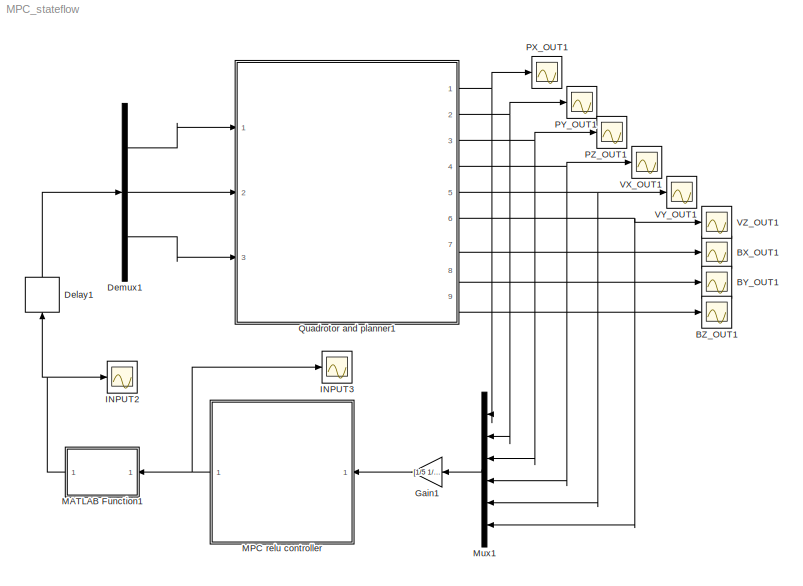
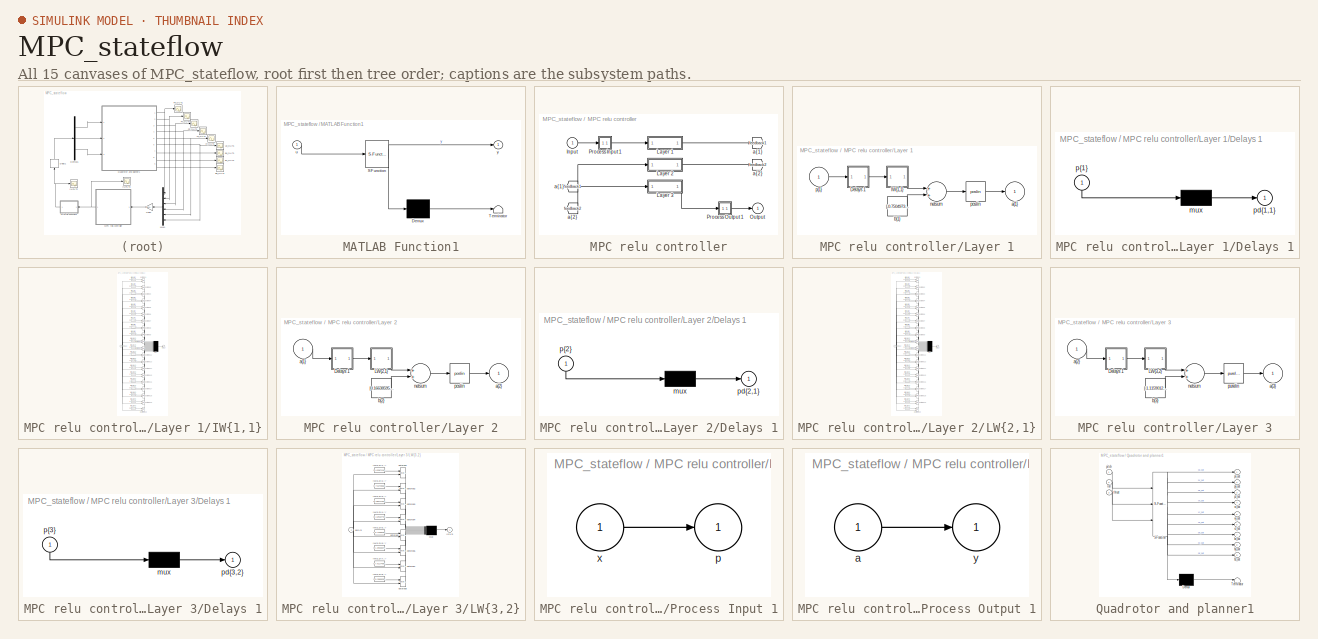
[diagram: thumbnail index - all 15 canvases of the model, root first then tree order]
MODEL MPC_stateflow
KIND model
BLOCK [Scope] BX_OUT1
  Floating = off
  NumInputPorts = 1
  Ports = [1]
  SID = 642
  ScopeSpecificationString = Simulink.scopes.TimeScopeBlockCfg('CurrentConfiguration', extmgr.ConfigurationSet(extmgr.Configuration('Core','General UI',true),extmgr.Configuration('Core','Source UI',true),extmgr.Configuration('Sources','WiredSimulink',true,'DataLoggingVariableName','ScopeData1'),extmgr.Configuration('Visuals','Time Domain',true,'SerializedDisplays',{struct('MinYLimReal','-0.1125','MaxYLimReal','3.0125','YLabel...<+1435ch>
BLOCK [Scope] BY_OUT1
  Floating = off
  NumInputPorts = 1
  Ports = [1]
  SID = 643
  ScopeSpecificationString = Simulink.scopes.TimeScopeBlockCfg('CurrentConfiguration', extmgr.ConfigurationSet(extmgr.Configuration('Core','General UI',true),extmgr.Configuration('Core','Source UI',true),extmgr.Configuration('Sources','WiredSimulink',true,'DataLoggingVariableName','ScopeData2'),extmgr.Configuration('Visuals','Time Domain',true,'SerializedDisplays',{struct('MinYLimReal','-2.72437','MaxYLimReal','0.40063','YLab...<+1440ch>
BLOCK [Scope] BZ_OUT1
  Floating = off
  NumInputPorts = 1
  Ports = [1]
  SID = 644
  ScopeSpecificationString = Simulink.scopes.TimeScopeBlockCfg('CurrentConfiguration', extmgr.ConfigurationSet(extmgr.Configuration('Core','General UI',true),extmgr.Configuration('Core','Source UI',true),extmgr.Configuration('Sources','WiredSimulink',true,'DataLoggingVariableName','ScopeData3'),extmgr.Configuration('Visuals','Time Domain',true,'SerializedDisplays',{struct('MinYLimReal','-0.51245','MaxYLimReal','2.61255','YLab...<+1441ch>
BLOCK [Delay] Delay1
  DelayLength = 1
  InitialCondition = 0
  InputPortMap = u0
  Ports = [1, 1]
  SID = 645
BLOCK [Demux] Demux1
  DisplayOption = bar
  Outputs = 3
  Ports = [1, 3]
  SID = 646
BLOCK [Gain] Gain1
  Gain = [1/5 1/5 1/5 1/10 1/10 1/10]
  OutDataTypeStr = Inherit: Inherit via internal rule
  ParamDataTypeStr = Inherit: Inherit via internal rule
  SID = 647
  SaturateOnIntegerOverflow = off
BLOCK [Scope] INPUT2
  Floating = off
  NumInputPorts = 1
  Ports = [1]
  SID = 648
  ScopeSpecificationString = Simulink.scopes.TimeScopeBlockCfg('CurrentConfiguration', extmgr.ConfigurationSet(extmgr.Configuration('Core','General UI',true),extmgr.Configuration('Core','Source UI',true),extmgr.Configuration('Sources','WiredSimulink',true,'DataLoggingVariableName','ScopeData4'),extmgr.Configuration('Visuals','Time Domain',true,'SerializedDisplays',{struct('MinYLimReal','-1.58875','MaxYLimReal','13.29875','YLa...<+1565ch>
BLOCK [Scope] INPUT3
  Floating = off
  NumInputPorts = 1
  Ports = [1]
  SID = 649
  ScopeSpecificationString = Simulink.scopes.TimeScopeBlockCfg('CurrentConfiguration', extmgr.ConfigurationSet(extmgr.Configuration('Core','General UI',true),extmgr.Configuration('Core','Source UI',true),extmgr.Configuration('Sources','WiredSimulink',true,'DataLoggingVariableName','ScopeData5'),extmgr.Configuration('Visuals','Time Domain',true,'SerializedDisplays',{struct('MinYLimReal','-915.34695','MaxYLimReal','908.33649','...<+1834ch>
BLOCK [SubSystem] MATLAB Function1
  ErrorFcn = Stateflow.Translate.translate
  PermitHierarchicalResolution = ExplicitOnly
  Ports = [1, 1]
  RequestExecContextInheritance = off
  SFBlockType = MATLAB Function
  SID = 650
  TreatAsAtomicUnit = on
BLOCK [Demux] MATLAB Function1/ Demux 
  Outputs = 1
  Ports = [1, 1]
  SID = 650::20
BLOCK [S-Function] MATLAB Function1/ SFunction 
  EnableBusSupport = on
  FunctionName = sf_sfun
  PortCounts = [1 2]
  Ports = [1, 2]
  SFcnIsStateOwnerBlock = off
  SFunctionDeploymentMode = off
  SID = 650::19
  Tag = Stateflow S-Function MPC_stateflow 3
BLOCK [Terminator] MATLAB Function1/ Terminator 
  SID = 650::21
BLOCK [Inport] MATLAB Function1/u
  IconDisplay = Port number
  SID = 650::1
BLOCK [Outport] MATLAB Function1/y
  IconDisplay = Port number
  SID = 650::5
BLOCK [SubSystem] MPC relu controller
  Ports = [1, 1]
  RequestExecContextInheritance = off
  SID = 964
BLOCK [From] MPC relu controller/ a{1} 
  GotoTag = feedback1
  SID = 966
BLOCK [From] MPC relu controller/ a{2} 
  GotoTag = feedback2
  SID = 967
BLOCK [Inport] MPC relu controller/Input
  IconDisplay = Port number
  PortDimensions = 6
  SID = 965
BLOCK [SubSystem] MPC relu controller/Layer 1
  Ports = [1, 1]
  RequestExecContextInheritance = off
  SID = 968
BLOCK [SubSystem] MPC relu controller/Layer 1/Delays 1
  Ports = [1, 1]
  RequestExecContextInheritance = off
  SID = 970
BLOCK [Mux] MPC relu controller/Layer 1/Delays 1/mux
  Inputs = 1
  Ports = [1, 1]
  SID = 972
BLOCK [Outport] MPC relu controller/Layer 1/Delays 1/pd{1,1}
  IconDisplay = Port number
  SID = 973
BLOCK [Inport] MPC relu controller/Layer 1/Delays 1/p{1}
  IconDisplay = Port number
  PortDimensions = 6
  SID = 971
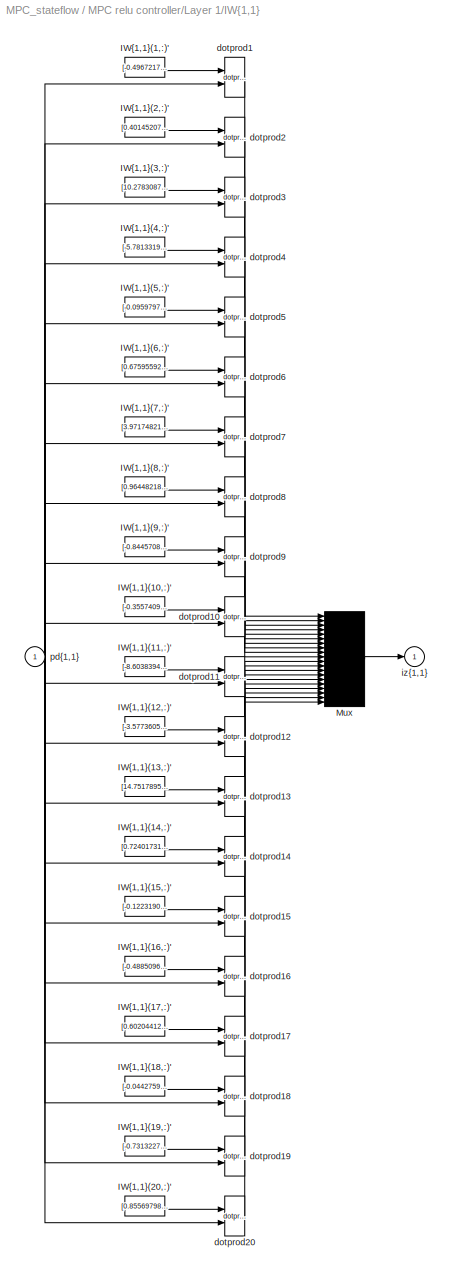
BLOCK [SubSystem] MPC relu controller/Layer 1/IW{1,1}
  Ports = [1, 1]
  RequestExecContextInheritance = off
  SID = 974
BLOCK [Constant] MPC relu controller/Layer 1/IW{1,1}/IW{1,1}(1,:)'
  SID = 976
  Value = [-0.49672171528829434095086980960331857204437255859375;0.7919399340132968756478248906205408275127410888671875;-0.1870342620458274041084223426878452301025390625;0.3947377512262788545882585822255350649356842041015625;-0.3139437803391869064029151559225283563137054443359375;-0.7011064021222750408668389354716055095195770263671875]
BLOCK [Constant] MPC relu controller/Layer 1/IW{1,1}/IW{1,1}(10,:)'
  SID = 977
  Value = [-0.3557409727704607949050341630936600267887115478515625;-0.4115686235114905944243446356267668306827545166015625;-0.3593613483559374710551992393448017537593841552734375;0.1706969178765020966892507203738205134868621826171875;0.3847202432468177502045136861852370202541351318359375;-0.4762391917929595930303321438259445130825042724609375]
BLOCK [Constant] MPC relu controller/Layer 1/IW{1,1}/IW{1,1}(11,:)'
  SID = 978
  Value = [-8.60383941965420717679080553352832794189453125;-15.5228977256636806458800492691807448863983154296875;8.1414878272752755350438746972940862178802490234375;-7.3435267043911611750672818743623793125152587890625;-8.6554831042108570926529864664189517498016357421875;4.52085750036575273469452440622262656688690185546875]
BLOCK [Constant] MPC relu controller/Layer 1/IW{1,1}/IW{1,1}(12,:)'
  SID = 979
  Value = [-3.5773605196200346512114265351556241512298583984375;3.280204690741935547038110598805360496044158935546875;-1.4131545374955087890356253410573117434978485107421875;-2.652332317553045104574493961990810930728912353515625;4.11605436748665365342958466499112546443939208984375;-2.46629943742274537754610719275660812854766845703125]
BLOCK [Constant] MPC relu controller/Layer 1/IW{1,1}/IW{1,1}(13,:)'
  SID = 980
  Value = [14.75178956292919707493638270534574985504150390625;-8.1467745080255582479367149062454700469970703125;-11.700032558051763231787845143117010593414306640625;8.7378958296805766536863302462734282016754150390625;-3.4881583919940748472754421527497470378875732421875;-8.076032161680029020089932600967586040496826171875]
BLOCK [Constant] MPC relu controller/Layer 1/IW{1,1}/IW{1,1}(14,:)'
  SID = 981
  Value = [0.7240173144088901668879998396732844412326812744140625;0.42751693404526613928595679681166075170040130615234375;0.715620074538168449151953609543852508068084716796875;-0.45353663372330321745806713806814514100551605224609375;-0.274815253673093451425302191637456417083740234375;0.2000094339945863441965201445782440714538097381591796875]
BLOCK [Constant] MPC relu controller/Layer 1/IW{1,1}/IW{1,1}(15,:)'
  SID = 982
  Value = [-0.1223190113787241684040196787464083172380924224853515625;4.484759038302289724242655211128294467926025390625;-3.32264992522697166776879384997300803661346435546875;-1.7593434647760641809099979582242667675018310546875;1.517532838671552308795753560843877494335174560546875;-0.9137275420860309083082029246725142002105712890625]
BLOCK [Constant] MPC relu controller/Layer 1/IW{1,1}/IW{1,1}(16,:)'
  SID = 983
  Value = [-0.488509612388137615113237188779748976230621337890625;0.589156702369504348126838522148318588733673095703125;-0.4959338397383212804214736024732701480388641357421875;0.3649074195336308168435834886622615158557891845703125;0.2632932537318792842739867410273291170597076416015625;0.0192265884351172644528560340404510498046875]
BLOCK [Constant] MPC relu controller/Layer 1/IW{1,1}/IW{1,1}(17,:)'
  SID = 984
  Value = [0.6020441251050534514632772697950713336467742919921875;0.0031421927660008931726398628825336345471441745758056640625;0.5886743113083074963043372918036766350269317626953125;-0.55305562852305778509531819508993066847324371337890625;0.412352603937068684647471172866062261164188385009765625;-0.39253657679086229048692757714889012277126312255859375]
BLOCK [Constant] MPC relu controller/Layer 1/IW{1,1}/IW{1,1}(18,:)'
  SID = 985
  Value = [-0.0442759911355576907254771867883391678333282470703125;0.58364207900830766817534822621382772922515869140625;-0.134122982531673873296540477895177900791168212890625;-0.97246497488456640212461934424936771392822265625;0.2271773890056711930895971818245016038417816162109375;0.7193019071384021412285392216290347278118133544921875]
BLOCK [Constant] MPC relu controller/Layer 1/IW{1,1}/IW{1,1}(19,:)'
  SID = 986
  Value = [-0.7313227826886077309609390795230865478515625;0.39152842854367886360478223650716245174407958984375;-0.284977665339117169907012794283218681812286376953125;-0.1665520752586078234713795609422959387302398681640625;0.296625512326249118899568202323280274868011474609375;0.34319676181277980475670119631104171276092529296875]
BLOCK [Constant] MPC relu controller/Layer 1/IW{1,1}/IW{1,1}(2,:)'
  SID = 987
  Value = [0.4014520729650759012230309963342733681201934814453125;-0.0169096999661293434513709144084714353084564208984375;0.2955412663749623636277874538791365921497344970703125;-0.4626997521875468866170422188588418066501617431640625;0.559488590965199872329094432643614709377288818359375;0.0283500870517656711200515928794629871845245361328125]
BLOCK [Constant] MPC relu controller/Layer 1/IW{1,1}/IW{1,1}(20,:)'
  SID = 988
  Value = [0.8556979856500215309011991848819889128208160400390625;0.55569695371835070574206838500685989856719970703125;-0.3394461269498381117415419794269837439060211181640625;0.8769637837134680591333335542003624141216278076171875;-0.66011857156548447989052874618209898471832275390625;0.2669480252448419577149252290837466716766357421875]
BLOCK [Constant] MPC relu controller/Layer 1/IW{1,1}/IW{1,1}(3,:)'
  SID = 989
  Value = [10.278308773275764309573787613771855831146240234375;-1.458070988124216871284488661331124603748321533203125;9.2976133767070638924678860348649322986602783203125;5.96961486516493256004878276144154369831085205078125;-0.78994311381280357675649383963900618255138397216796875;6.1202362807710386505277710966765880584716796875]
BLOCK [Constant] MPC relu controller/Layer 1/IW{1,1}/IW{1,1}(4,:)'
  SID = 990
  Value = [-5.78133195487929274491989417583681643009185791015625;8.1155963311058929576802256633527576923370361328125;-9.0452319045538605024603384663350880146026611328125;-5.7248894483031964597330443211831152439117431640625;5.45969840530721750582188178668729960918426513671875;-6.17549641965308371283072119695134460926055908203125]
BLOCK [Constant] MPC relu controller/Layer 1/IW{1,1}/IW{1,1}(5,:)'
  SID = 991
  Value = [-0.09597971285552098219540084755863063037395477294921875;0.307012674627499759782978117073071189224720001220703125;-0.471345532376645171002138567928341217339038848876953125;1.806571114485711060382300274795852601528167724609375;-2.656519324157930128649240941740572452545166015625;2.0038525987593853727730675018392503261566162109375]
BLOCK [Constant] MPC relu controller/Layer 1/IW{1,1}/IW{1,1}(6,:)'
  SID = 992
  Value = [0.6759559240954586822880401086877100169658660888671875;-0.204018721184155094050538536976091563701629638671875;-0.18272554997347523197959162644110620021820068359375;-0.02415701638959522057348294765688478946685791015625;0.43354162829275200152778779738582670688629150390625;-0.1421353319401941206479023094289004802703857421875]
BLOCK [Constant] MPC relu controller/Layer 1/IW{1,1}/IW{1,1}(7,:)'
  SID = 993
  Value = [3.971748215038558793565925952862016856670379638671875;8.5981762946841673311837439541704952716827392578125;10.513905616820007793421609676443040370941162109375;2.415782649071406940066708557424135506153106689453125;6.7366019229035334348054675501771271228790283203125;6.43590368048370198295060617965646088123321533203125]
BLOCK [Constant] MPC relu controller/Layer 1/IW{1,1}/IW{1,1}(8,:)'
  SID = 994
  Value = [0.9644821869427320226719757556566037237644195556640625;-0.62740953330892512695982077275402843952178955078125;-0.175789058369896722400227417892892844974994659423828125;0.85172974461793515832397361009498126804828643798828125;0.29110676170273552809675265962141565978527069091796875;-0.60794562571602506206858151927008293569087982177734375]
BLOCK [Constant] MPC relu controller/Layer 1/IW{1,1}/IW{1,1}(9,:)'
  SID = 995
  Value = [-0.84457085933522701992615111521445214748382568359375;0.9299778482218277186888144569820724427700042724609375;0.950444684874624190484837527037598192691802978515625;-0.631231115264466513536945058149285614490509033203125;-0.4932079310274006811454228227376006543636322021484375;-0.3151187177303789166415981526370160281658172607421875]
BLOCK [Mux] MPC relu controller/Layer 1/IW{1,1}/Mux
  Inputs = 20
  Ports = [20, 1]
  SID = 996
BLOCK [Reference] MPC relu controller/Layer 1/IW{1,1}/dotprod1  REF=neural/Weight Functions/dotprod
  Ports = [2, 1]
  SID = 997
  SourceBlock = neural/Weight Functions/dotprod
  SourceProductBaseCode = NN
  SourceProductName = Neural Network Toolbox
  SourceType = DOTPROD
BLOCK [Reference] MPC relu controller/Layer 1/IW{1,1}/dotprod10  REF=neural/Weight Functions/dotprod
  Ports = [2, 1]
  SID = 998
  SourceBlock = neural/Weight Functions/dotprod
  SourceProductBaseCode = NN
  SourceProductName = Neural Network Toolbox
  SourceType = DOTPROD
BLOCK [Reference] MPC relu controller/Layer 1/IW{1,1}/dotprod11  REF=neural/Weight Functions/dotprod
  Ports = [2, 1]
  SID = 999
  SourceBlock = neural/Weight Functions/dotprod
  SourceProductBaseCode = NN
  SourceProductName = Neural Network Toolbox
  SourceType = DOTPROD
BLOCK [Reference] MPC relu controller/Layer 1/IW{1,1}/dotprod12  REF=neural/Weight Functions/dotprod
  Ports = [2, 1]
  SID = 1000
  SourceBlock = neural/Weight Functions/dotprod
  SourceProductBaseCode = NN
  SourceProductName = Neural Network Toolbox
  SourceType = DOTPROD
BLOCK [Reference] MPC relu controller/Layer 1/IW{1,1}/dotprod13  REF=neural/Weight Functions/dotprod
  Ports = [2, 1]
  SID = 1001
  SourceBlock = neural/Weight Functions/dotprod
  SourceProductBaseCode = NN
  SourceProductName = Neural Network Toolbox
  SourceType = DOTPROD
BLOCK [Reference] MPC relu controller/Layer 1/IW{1,1}/dotprod14  REF=neural/Weight Functions/dotprod
  Ports = [2, 1]
  SID = 1002
  SourceBlock = neural/Weight Functions/dotprod
  SourceProductBaseCode = NN
  SourceProductName = Neural Network Toolbox
  SourceType = DOTPROD
BLOCK [Reference] MPC relu controller/Layer 1/IW{1,1}/dotprod15  REF=neural/Weight Functions/dotprod
  Ports = [2, 1]
  SID = 1003
  SourceBlock = neural/Weight Functions/dotprod
  SourceProductBaseCode = NN
  SourceProductName = Neural Network Toolbox
  SourceType = DOTPROD
BLOCK [Reference] MPC relu controller/Layer 1/IW{1,1}/dotprod16  REF=neural/Weight Functions/dotprod
  Ports = [2, 1]
  SID = 1004
  SourceBlock = neural/Weight Functions/dotprod
  SourceProductBaseCode = NN
  SourceProductName = Neural Network Toolbox
  SourceType = DOTPROD
BLOCK [Reference] MPC relu controller/Layer 1/IW{1,1}/dotprod17  REF=neural/Weight Functions/dotprod
  Ports = [2, 1]
  SID = 1005
  SourceBlock = neural/Weight Functions/dotprod
  SourceProductBaseCode = NN
  SourceProductName = Neural Network Toolbox
  SourceType = DOTPROD
BLOCK [Reference] MPC relu controller/Layer 1/IW{1,1}/dotprod18  REF=neural/Weight Functions/dotprod
  Ports = [2, 1]
  SID = 1006
  SourceBlock = neural/Weight Functions/dotprod
  SourceProductBaseCode = NN
  SourceProductName = Neural Network Toolbox
  SourceType = DOTPROD
BLOCK [Reference] MPC relu controller/Layer 1/IW{1,1}/dotprod19  REF=neural/Weight Functions/dotprod
  Ports = [2, 1]
  SID = 1007
  SourceBlock = neural/Weight Functions/dotprod
  SourceProductBaseCode = NN
  SourceProductName = Neural Network Toolbox
  SourceType = DOTPROD
BLOCK [Reference] MPC relu controller/Layer 1/IW{1,1}/dotprod2  REF=neural/Weight Functions/dotprod
  Ports = [2, 1]
  SID = 1008
  SourceBlock = neural/Weight Functions/dotprod
  SourceProductBaseCode = NN
  SourceProductName = Neural Network Toolbox
  SourceType = DOTPROD
BLOCK [Reference] MPC relu controller/Layer 1/IW{1,1}/dotprod20  REF=neural/Weight Functions/dotprod
  Ports = [2, 1]
  SID = 1009
  SourceBlock = neural/Weight Functions/dotprod
  SourceProductBaseCode = NN
  SourceProductName = Neural Network Toolbox
  SourceType = DOTPROD
BLOCK [Reference] MPC relu controller/Layer 1/IW{1,1}/dotprod3  REF=neural/Weight Functions/dotprod
  Ports = [2, 1]
  SID = 1010
  SourceBlock = neural/Weight Functions/dotprod
  SourceProductBaseCode = NN
  SourceProductName = Neural Network Toolbox
  SourceType = DOTPROD
BLOCK [Reference] MPC relu controller/Layer 1/IW{1,1}/dotprod4  REF=neural/Weight Functions/dotprod
  Ports = [2, 1]
  SID = 1011
  SourceBlock = neural/Weight Functions/dotprod
  SourceProductBaseCode = NN
  SourceProductName = Neural Network Toolbox
  SourceType = DOTPROD
BLOCK [Reference] MPC relu controller/Layer 1/IW{1,1}/dotprod5  REF=neural/Weight Functions/dotprod
  Ports = [2, 1]
  SID = 1012
  SourceBlock = neural/Weight Functions/dotprod
  SourceProductBaseCode = NN
  SourceProductName = Neural Network Toolbox
  SourceType = DOTPROD
BLOCK [Reference] MPC relu controller/Layer 1/IW{1,1}/dotprod6  REF=neural/Weight Functions/dotprod
  Ports = [2, 1]
  SID = 1013
  SourceBlock = neural/Weight Functions/dotprod
  SourceProductBaseCode = NN
  SourceProductName = Neural Network Toolbox
  SourceType = DOTPROD
BLOCK [Reference] MPC relu controller/Layer 1/IW{1,1}/dotprod7  REF=neural/Weight Functions/dotprod
  Ports = [2, 1]
  SID = 1014
  SourceBlock = neural/Weight Functions/dotprod
  SourceProductBaseCode = NN
  SourceProductName = Neural Network Toolbox
  SourceType = DOTPROD
BLOCK [Reference] MPC relu controller/Layer 1/IW{1,1}/dotprod8  REF=neural/Weight Functions/dotprod
  Ports = [2, 1]
  SID = 1015
  SourceBlock = neural/Weight Functions/dotprod
  SourceProductBaseCode = NN
  SourceProductName = Neural Network Toolbox
  SourceType = DOTPROD
BLOCK [Reference] MPC relu controller/Layer 1/IW{1,1}/dotprod9  REF=neural/Weight Functions/dotprod
  Ports = [2, 1]
  SID = 1016
  SourceBlock = neural/Weight Functions/dotprod
  SourceProductBaseCode = NN
  SourceProductName = Neural Network Toolbox
  SourceType = DOTPROD
BLOCK [Outport] MPC relu controller/Layer 1/IW{1,1}/iz{1,1}
  IconDisplay = Port number
  SID = 1017
BLOCK [Inport] MPC relu controller/Layer 1/IW{1,1}/pd{1,1}
  IconDisplay = Port number
  PortDimensions = 6
  SID = 975
BLOCK [Outport] MPC relu controller/Layer 1/a{1}
  IconDisplay = Port number
  InitialOutput = [0;0;0;0;0;0;0;0;0;0;0;0;0;0;0;0;0;0;0;0]
  SID = 1021
BLOCK [Constant] MPC relu controller/Layer 1/b{1}
  SID = 1018
  Value = [-0.7504973998616415453710715155466459691524505615234375;-0.0588242410022286055237827895325608551502227783203125;0.9725351615555855033790066954679787158966064453125;1.7800647370580280348661972311674617230892181396484375;-0.216318361761681343669039279120624996721744537353515625;-0.696550257936052741314369995961897075176239013671875;-0.04567820375606888860797738516339450143277645111083984375;-0.0136...<+709ch>
BLOCK [Sum] MPC relu controller/Layer 1/netsum
  Inputs = 2
  Ports = [2, 1]
  SID = 1019
BLOCK [Reference] MPC relu controller/Layer 1/poslin  REF=neural/Transfer Functions/poslin
  Ports = [1, 1]
  SID = 1020
  SourceBlock = neural/Transfer Functions/poslin
  SourceProductBaseCode = NN
  SourceProductName = Neural Network Toolbox
  SourceType = POSLIN
BLOCK [Inport] MPC relu controller/Layer 1/p{1}
  IconDisplay = Port number
  PortDimensions = 6
  SID = 969
BLOCK [SubSystem] MPC relu controller/Layer 2
  Ports = [1, 1]
  RequestExecContextInheritance = off
  SID = 1022
BLOCK [SubSystem] MPC relu controller/Layer 2/Delays 1
  Ports = [1, 1]
  RequestExecContextInheritance = off
  SID = 1024
BLOCK [Mux] MPC relu controller/Layer 2/Delays 1/mux
  Inputs = 1
  Ports = [1, 1]
  SID = 1026
BLOCK [Outport] MPC relu controller/Layer 2/Delays 1/pd{2,1}
  IconDisplay = Port number
  SID = 1027
BLOCK [Inport] MPC relu controller/Layer 2/Delays 1/p{2}
  IconDisplay = Port number
  PortDimensions = 20
  SID = 1025
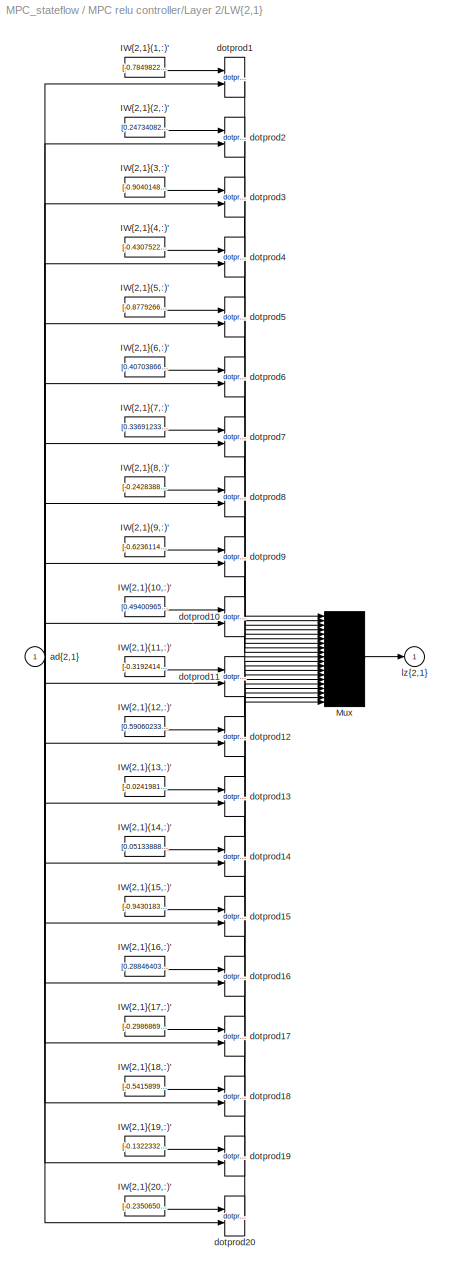
BLOCK [SubSystem] MPC relu controller/Layer 2/LW{2,1}
  Ports = [1, 1]
  RequestExecContextInheritance = off
  SID = 1028
BLOCK [Constant] MPC relu controller/Layer 2/LW{2,1}/IW{2,1}(1,:)'
  SID = 1030
  Value = [-0.78498224762966462009217138984240591526031494140625;-0.060421919827279513270923416712321341037750244140625;5.9631375225940370654598154942505061626434326171875;-5.75995181875730022369452854036353528499603271484375;1.479993944168970898545012460090219974517822265625;0.7540687785407038656870781778707168996334075927734375;-2.46005519196679234283919868175871670246124267578125;0.0720169894791273801359...<+671ch>
BLOCK [Constant] MPC relu controller/Layer 2/LW{2,1}/IW{2,1}(10,:)'
  SID = 1031
  Value = [0.49400965805989027757050280342809855937957763671875;-0.912931472484469264117024067672900855541229248046875;-0.00240582898682573098625425700447522103786468505859375;-1.12049653485544542519392052781768143177032470703125;0.627603278532963049229920216021127998828887939453125;0.7403834924107552950545141356997191905975341796875;0.665732252268849133969297326984815299510955810546875;-0.13528881047131191...<+689ch>
BLOCK [Constant] MPC relu controller/Layer 2/LW{2,1}/IW{2,1}(11,:)'
  SID = 1032
  Value = [-0.319241418469065507679260917939245700836181640625;0.9015068561220045406656709019443951547145843505859375;0.27047631106911873555276315528317354619503021240234375;2.827976228021503946052916944609023630619049072265625;0.83555145878531444925130244882893748581409454345703125;-0.526262592886002966707792438683100044727325439453125;3.88750279462953596265606392989866435527801513671875;0.6853990424691760...<+693ch>
BLOCK [Constant] MPC relu controller/Layer 2/LW{2,1}/IW{2,1}(12,:)'
  SID = 1033
  Value = [0.5906023348112856563574268875527195632457733154296875;0.11281383134185052341535993036814033985137939453125;-0.045974011195473618585083386278711259365081787109375;-0.6166485221802198157803331923787482082843780517578125;-0.9205425866338303730884717879234813153743743896484375;-0.22799197795480896644448876031674444675445556640625;-0.061041942880148525318872998468577861785888671875;-0.091881887881697...<+694ch>
BLOCK [Constant] MPC relu controller/Layer 2/LW{2,1}/IW{2,1}(13,:)'
  SID = 1034
  Value = [-0.024198121640759406858478541835211217403411865234375;-0.2472735666258250031290799597627483308315277099609375;-8.0281478772281769096252901363186538219451904296875;7.96468816392580958307689797948114573955535888671875;-2.142160019817658689333939037169329822063446044921875;0.143084185450664591598979313857853412628173828125;-9.3876753041058496052073678583838045597076416015625;-0.95355220815704189174...<+693ch>
BLOCK [Constant] MPC relu controller/Layer 2/LW{2,1}/IW{2,1}(14,:)'
  SID = 1035
  Value = [0.0513388887019587958349120526690967381000518798828125;0.9901046446782222343330204239464364945888519287109375;0.97684997369172410497384362315642647445201873779296875;-1.1540615585890601213492345777922309935092926025390625;0.33938647544066302685905611724592745304107666015625;0.051603939902939988115804226254113018512725830078125;-0.85737626735616745410339945010491646826267242431640625;0.76593289524...<+705ch>
BLOCK [Constant] MPC relu controller/Layer 2/LW{2,1}/IW{2,1}(15,:)'
  SID = 1036
  Value = [-0.943018301016865567731883857049979269504547119140625;-0.88327470770473670569344903924502432346343994140625;-0.88337145951097706397803221989306621253490447998046875;-1.393266656138228309913529301411472260951995849609375;-0.58436490598825319153775126324035227298736572265625;-0.8479522411157862649133676313795149326324462890625;-0.62028042091033963600921197212301194667816162109375;0.200862465982792...<+704ch>
BLOCK [Constant] MPC relu controller/Layer 2/LW{2,1}/IW{2,1}(16,:)'
  SID = 1037
  Value = [0.2884640397580635617913458190741948783397674560546875;0.0334127195352242889470062436885200440883636474609375;-0.1818183361662801811320377964875660836696624755859375;-0.9665688218459871361432078629150055348873138427734375;0.8745041242568978301363813443458639085292816162109375;0.7482518711960566282215268074651248753070831298828125;-0.9257746710120111632846828797482885420322418212890625;0.646006081...<+699ch>
BLOCK [Constant] MPC relu controller/Layer 2/LW{2,1}/IW{2,1}(17,:)'
  SID = 1038
  Value = [-0.2986869951356652119756063257227651774883270263671875;-0.9378058490889042975169331839424557983875274658203125;-2.376593047790527268858795650885440409183502197265625;0.355030097935641719697485996221075765788555145263671875;0.259929265613767002118805748978047631680965423583984375;0.9022712368373841940183410770259797573089599609375;1.6758769452386232945428901075501926243305206298828125;0.907280682...<+693ch>
BLOCK [Constant] MPC relu controller/Layer 2/LW{2,1}/IW{2,1}(18,:)'
  SID = 1039
  Value = [-0.5415899454158685788485172452055849134922027587890625;0.1423514783724668664177670507342554628849029541015625;-0.855975929660460099768215513904578983783721923828125;-0.237837017413095264117828264716081321239471435546875;0.0792982201867011848861466205562464892864227294921875;0.62501460834934352561731429887004196643829345703125;0.340700063872336755821379483677446842193603515625;-0.8981752329662255...<+689ch>
BLOCK [Constant] MPC relu controller/Layer 2/LW{2,1}/IW{2,1}(19,:)'
  SID = 1040
  Value = [-0.1322332475765988224480906865210272371768951416015625;-0.6390629820097688540414537783362902700901031494140625;-6.66077660187531517266279479372315108776092529296875;-0.73576666046346483884832423427724279463291168212890625;1.7321538278773027652590599245741032063961029052734375;-0.43239633010625144748928505578078329563140869140625;-11.33001897385580747368294396437704563140869140625;-0.537663943828...<+692ch>
BLOCK [Constant] MPC relu controller/Layer 2/LW{2,1}/IW{2,1}(2,:)'
  SID = 1041
  Value = [0.24734082199540363689038713346235454082489013671875;0.9589667083596127294953248565434478223323822021484375;2.613331892424159974552821950055658817291259765625;0.880521073054885139441694263950921595096588134765625;-1.002219857239175393459618135238997638225555419921875;-0.492836501256743275689586880616843700408935546875;5.5849463649738328996363634360022842884063720703125;-0.935669609363300680549002...<+687ch>
BLOCK [Constant] MPC relu controller/Layer 2/LW{2,1}/IW{2,1}(20,:)'
  SID = 1042
  Value = [-0.2350650854581648463437204554793424904346466064453125;0.2619184006790609142711900858557783067226409912109375;-0.9484930351868332554232665643212385475635528564453125;-0.8581631990592255565530876992852427065372467041015625;-0.106729908352618974021197573165409266948699951171875;0.0556935922359189650165944840409792959690093994140625;0.53557795531634599939252439071424305438995361328125;-0.8733131130...<+699ch>
BLOCK [Constant] MPC relu controller/Layer 2/LW{2,1}/IW{2,1}(3,:)'
  SID = 1043
  Value = [-0.9040148719022653711618886518408544361591339111328125;-0.271243859263539111026375394430942833423614501953125;-8.6106918978568653955107947695069015026092529296875;10.991228152330478451403905637562274932861328125;-2.07198554148406710595509139238856732845306396484375;-0.4523805916837828622334427564055658876895904541015625;-1.752155891593787373494706116616725921630859375;-0.736171878626547204760299...<+683ch>
BLOCK [Constant] MPC relu controller/Layer 2/LW{2,1}/IW{2,1}(4,:)'
  SID = 1044
  Value = [-0.430752237986115726897651256876997649669647216796875;0.5488202666720789490995002779527567327022552490234375;0.416921740103434412816341136931441724300384521484375;-0.7812341716128308188871187667245976626873016357421875;0.3035785520201808029838730362826026976108551025390625;-0.343277219824819734839138618553988635540008544921875;-0.376594164562037203580757704912684857845306396484375;-0.61316720197...<+699ch>
BLOCK [Constant] MPC relu controller/Layer 2/LW{2,1}/IW{2,1}(5,:)'
  SID = 1045
  Value = [-0.8779266377606578242165369374561123549938201904296875;0.1055351930997849851934233811334706842899322509765625;1.2865975789050916322509010569774545729160308837890625;1.477819449546597052602692201617173850536346435546875;-0.1699784593033547841489649954382912255823612213134765625;0.0951285409619069266540236640139482915401458740234375;0.1823410431613168014575165898349951021373271942138671875;-0.3068...<+712ch>
BLOCK [Constant] MPC relu controller/Layer 2/LW{2,1}/IW{2,1}(6,:)'
  SID = 1046
  Value = [0.40703866221016227200379944406449794769287109375;0.778262178214965683054060718859545886516571044921875;-2.507172324152573406053079452249221503734588623046875;2.34916754941640970599792126449756324291229248046875;-0.5333861924302587542712217327789403498172760009765625;-0.55974265194603756157221141620539128780364990234375;-2.949125793024411468223888732609339058399200439453125;-0.8770638300537770826...<+695ch>
BLOCK [Constant] MPC relu controller/Layer 2/LW{2,1}/IW{2,1}(7,:)'
  SID = 1047
  Value = [0.336912335178964017501357375294901430606842041015625;-0.2900942977008560408336279579089023172855377197265625;-0.2609951132741448187601918107247911393642425537109375;0.2305857194458293957239902738365344703197479248046875;0.01973131678858382198615828428955865092575550079345703125;0.3428583421625466254312186720198951661586761474609375;0.45421758208282714264214519062079489231109619140625;0.153960424...<+712ch>
BLOCK [Constant] MPC relu controller/Layer 2/LW{2,1}/IW{2,1}(8,:)'
  SID = 1048
  Value = [-0.2428388134987955471189025047351606190204620361328125;-0.508962639626985069440934239537455141544342041015625;-0.698431203255614807545725852833129465579986572265625;-0.7127860042515814509300753343268297612667083740234375;0.9869209261996998439059325392008759081363677978515625;-0.7144134343939991804717237755539827048778533935546875;-0.348380066773590346684841279056854546070098876953125;0.024122055...<+701ch>
BLOCK [Constant] MPC relu controller/Layer 2/LW{2,1}/IW{2,1}(9,:)'
  SID = 1049
  Value = [-0.623611479940357593676480973954312503337860107421875;0.822038479313936587544731082743965089321136474609375;-0.26120014877618746851339892600663006305694580078125;-0.8335947271282488912902408628724515438079833984375;0.6689730280360592917787698752363212406635284423828125;-0.8117994510007211506064095374313183128833770751953125;0.779654682894749928578903563902713358402252197265625;0.2349220240343121...<+688ch>
BLOCK [Mux] MPC relu controller/Layer 2/LW{2,1}/Mux
  Inputs = 20
  Ports = [20, 1]
  SID = 1050
BLOCK [Inport] MPC relu controller/Layer 2/LW{2,1}/ad{2,1}
  IconDisplay = Port number
  PortDimensions = 20
  SID = 1029
BLOCK [Reference] MPC relu controller/Layer 2/LW{2,1}/dotprod1  REF=neural/Weight Functions/dotprod
  Ports = [2, 1]
  SID = 1051
  SourceBlock = neural/Weight Functions/dotprod
  SourceProductBaseCode = NN
  SourceProductName = Neural Network Toolbox
  SourceType = DOTPROD
BLOCK [Reference] MPC relu controller/Layer 2/LW{2,1}/dotprod10  REF=neural/Weight Functions/dotprod
  Ports = [2, 1]
  SID = 1052
  SourceBlock = neural/Weight Functions/dotprod
  SourceProductBaseCode = NN
  SourceProductName = Neural Network Toolbox
  SourceType = DOTPROD
BLOCK [Reference] MPC relu controller/Layer 2/LW{2,1}/dotprod11  REF=neural/Weight Functions/dotprod
  Ports = [2, 1]
  SID = 1053
  SourceBlock = neural/Weight Functions/dotprod
  SourceProductBaseCode = NN
  SourceProductName = Neural Network Toolbox
  SourceType = DOTPROD
BLOCK [Reference] MPC relu controller/Layer 2/LW{2,1}/dotprod12  REF=neural/Weight Functions/dotprod
  Ports = [2, 1]
  SID = 1054
  SourceBlock = neural/Weight Functions/dotprod
  SourceProductBaseCode = NN
  SourceProductName = Neural Network Toolbox
  SourceType = DOTPROD
BLOCK [Reference] MPC relu controller/Layer 2/LW{2,1}/dotprod13  REF=neural/Weight Functions/dotprod
  Ports = [2, 1]
  SID = 1055
  SourceBlock = neural/Weight Functions/dotprod
  SourceProductBaseCode = NN
  SourceProductName = Neural Network Toolbox
  SourceType = DOTPROD
BLOCK [Reference] MPC relu controller/Layer 2/LW{2,1}/dotprod14  REF=neural/Weight Functions/dotprod
  Ports = [2, 1]
  SID = 1056
  SourceBlock = neural/Weight Functions/dotprod
  SourceProductBaseCode = NN
  SourceProductName = Neural Network Toolbox
  SourceType = DOTPROD
BLOCK [Reference] MPC relu controller/Layer 2/LW{2,1}/dotprod15  REF=neural/Weight Functions/dotprod
  Ports = [2, 1]
  SID = 1057
  SourceBlock = neural/Weight Functions/dotprod
  SourceProductBaseCode = NN
  SourceProductName = Neural Network Toolbox
  SourceType = DOTPROD
BLOCK [Reference] MPC relu controller/Layer 2/LW{2,1}/dotprod16  REF=neural/Weight Functions/dotprod
  Ports = [2, 1]
  SID = 1058
  SourceBlock = neural/Weight Functions/dotprod
  SourceProductBaseCode = NN
  SourceProductName = Neural Network Toolbox
  SourceType = DOTPROD
BLOCK [Reference] MPC relu controller/Layer 2/LW{2,1}/dotprod17  REF=neural/Weight Functions/dotprod
  Ports = [2, 1]
  SID = 1059
  SourceBlock = neural/Weight Functions/dotprod
  SourceProductBaseCode = NN
  SourceProductName = Neural Network Toolbox
  SourceType = DOTPROD
BLOCK [Reference] MPC relu controller/Layer 2/LW{2,1}/dotprod18  REF=neural/Weight Functions/dotprod
  Ports = [2, 1]
  SID = 1060
  SourceBlock = neural/Weight Functions/dotprod
  SourceProductBaseCode = NN
  SourceProductName = Neural Network Toolbox
  SourceType = DOTPROD
BLOCK [Reference] MPC relu controller/Layer 2/LW{2,1}/dotprod19  REF=neural/Weight Functions/dotprod
  Ports = [2, 1]
  SID = 1061
  SourceBlock = neural/Weight Functions/dotprod
  SourceProductBaseCode = NN
  SourceProductName = Neural Network Toolbox
  SourceType = DOTPROD
BLOCK [Reference] MPC relu controller/Layer 2/LW{2,1}/dotprod2  REF=neural/Weight Functions/dotprod
  Ports = [2, 1]
  SID = 1062
  SourceBlock = neural/Weight Functions/dotprod
  SourceProductBaseCode = NN
  SourceProductName = Neural Network Toolbox
  SourceType = DOTPROD
BLOCK [Reference] MPC relu controller/Layer 2/LW{2,1}/dotprod20  REF=neural/Weight Functions/dotprod
  Ports = [2, 1]
  SID = 1063
  SourceBlock = neural/Weight Functions/dotprod
  SourceProductBaseCode = NN
  SourceProductName = Neural Network Toolbox
  SourceType = DOTPROD
BLOCK [Reference] MPC relu controller/Layer 2/LW{2,1}/dotprod3  REF=neural/Weight Functions/dotprod
  Ports = [2, 1]
  SID = 1064
  SourceBlock = neural/Weight Functions/dotprod
  SourceProductBaseCode = NN
  SourceProductName = Neural Network Toolbox
  SourceType = DOTPROD
BLOCK [Reference] MPC relu controller/Layer 2/LW{2,1}/dotprod4  REF=neural/Weight Functions/dotprod
  Ports = [2, 1]
  SID = 1065
  SourceBlock = neural/Weight Functions/dotprod
  SourceProductBaseCode = NN
  SourceProductName = Neural Network Toolbox
  SourceType = DOTPROD
BLOCK [Reference] MPC relu controller/Layer 2/LW{2,1}/dotprod5  REF=neural/Weight Functions/dotprod
  Ports = [2, 1]
  SID = 1066
  SourceBlock = neural/Weight Functions/dotprod
  SourceProductBaseCode = NN
  SourceProductName = Neural Network Toolbox
  SourceType = DOTPROD
BLOCK [Reference] MPC relu controller/Layer 2/LW{2,1}/dotprod6  REF=neural/Weight Functions/dotprod
  Ports = [2, 1]
  SID = 1067
  SourceBlock = neural/Weight Functions/dotprod
  SourceProductBaseCode = NN
  SourceProductName = Neural Network Toolbox
  SourceType = DOTPROD
BLOCK [Reference] MPC relu controller/Layer 2/LW{2,1}/dotprod7  REF=neural/Weight Functions/dotprod
  Ports = [2, 1]
  SID = 1068
  SourceBlock = neural/Weight Functions/dotprod
  SourceProductBaseCode = NN
  SourceProductName = Neural Network Toolbox
  SourceType = DOTPROD
BLOCK [Reference] MPC relu controller/Layer 2/LW{2,1}/dotprod8  REF=neural/Weight Functions/dotprod
  Ports = [2, 1]
  SID = 1069
  SourceBlock = neural/Weight Functions/dotprod
  SourceProductBaseCode = NN
  SourceProductName = Neural Network Toolbox
  SourceType = DOTPROD
BLOCK [Reference] MPC relu controller/Layer 2/LW{2,1}/dotprod9  REF=neural/Weight Functions/dotprod
  Ports = [2, 1]
  SID = 1070
  SourceBlock = neural/Weight Functions/dotprod
  SourceProductBaseCode = NN
  SourceProductName = Neural Network Toolbox
  SourceType = DOTPROD
BLOCK [Outport] MPC relu controller/Layer 2/LW{2,1}/lz{2,1}
  IconDisplay = Port number
  SID = 1071
BLOCK [Inport] MPC relu controller/Layer 2/a{1} 
  IconDisplay = Port number
  PortDimensions = 20
  SID = 1023
BLOCK [Outport] MPC relu controller/Layer 2/a{2}
  IconDisplay = Port number
  InitialOutput = [0;0;0;0;0;0;0;0;0;0;0;0;0;0;0;0;0;0;0;0]
  SID = 1075
BLOCK [Constant] MPC relu controller/Layer 2/b{2}
  SID = 1072
  Value = [0.166385959885100243038635881021036766469478607177734375;0.06264271978270678775668756088634836487472057342529296875;0.036360695213356282462502377939017605967819690704345703125;-0.74657323230615446618685382418334484100341796875;0.08900102460937542314667325626942329108715057373046875;-0.5627472195361875595409628658671863377094268798828125;-0.74195065889608258213883118514786474406719207763671875;0.4...<+717ch>
BLOCK [Sum] MPC relu controller/Layer 2/netsum
  Inputs = 2
  Ports = [2, 1]
  SID = 1073
BLOCK [Reference] MPC relu controller/Layer 2/poslin  REF=neural/Transfer Functions/poslin
  Ports = [1, 1]
  SID = 1074
  SourceBlock = neural/Transfer Functions/poslin
  SourceProductBaseCode = NN
  SourceProductName = Neural Network Toolbox
  SourceType = POSLIN
BLOCK [SubSystem] MPC relu controller/Layer 3
  Ports = [1, 1]
  RequestExecContextInheritance = off
  SID = 1076
BLOCK [SubSystem] MPC relu controller/Layer 3/Delays 1
  Ports = [1, 1]
  RequestExecContextInheritance = off
  SID = 1078
BLOCK [Mux] MPC relu controller/Layer 3/Delays 1/mux
  Inputs = 1
  Ports = [1, 1]
  SID = 1080
BLOCK [Outport] MPC relu controller/Layer 3/Delays 1/pd{3,2}
  IconDisplay = Port number
  SID = 1081
BLOCK [Inport] MPC relu controller/Layer 3/Delays 1/p{3}
  IconDisplay = Port number
  PortDimensions = 20
  SID = 1079
BLOCK [SubSystem] MPC relu controller/Layer 3/LW{3,2}
  Ports = [1, 1]
  RequestExecContextInheritance = off
  SID = 1082
BLOCK [Constant] MPC relu controller/Layer 3/LW{3,2}/IW{3,2}(1,:)'
  SID = 1084
  Value = [9.4336741692247070290022747940383851528167724609375;0.422382668004513017745438219208153896033763885498046875;-9.5360574486090978751917646150104701519012451171875;0.1976417812468438395256953299394808709621429443359375;-1.277021213815629607779555954039096832275390625;-2.46838324755591198567117316997610032558441162109375;0.1860879344095007492665416748423012904822826385498046875;0.4792239250150933660...<+702ch>
BLOCK [Constant] MPC relu controller/Layer 3/LW{3,2}/IW{3,2}(2,:)'
  SID = 1085
  Value = [7.4127286548182400593987040338106453418731689453125;-5.17893971120398521890137999434955418109893798828125;-3.706031195014024337552882570889778435230255126953125;0.49331494424601007864339408115483820438385009765625;1.8217341304558696268856010647141374647617340087890625;1.4094922460790841878264245679019950330257415771484375;0.31479246439974184479382302015437744557857513427734375;-0.9247922427007997...<+689ch>
BLOCK [Constant] MPC relu controller/Layer 3/LW{3,2}/IW{3,2}(3,:)'
  SID = 1086
  Value = [2.052747940121577574501543494989164173603057861328125;4.46494813574815196943745831958949565887451171875;-3.165695381254457263509038966731168329715728759765625;0.0839421235428829959346330724656581878662109375;0.09905513238962694588796153993826010264456272125244140625;-2.5336656859663744256749851047061383724212646484375;-0.1610220644919343191414640159564442001283168792724609375;0.529453278000972193...<+682ch>
BLOCK [Constant] MPC relu controller/Layer 3/LW{3,2}/IW{3,2}(4,:)'
  SID = 1087
  Value = [0.129107754888402315174289469723589718341827392578125;-1.7163447129368296639739810416358523070812225341796875;3.426808905467449761772513738833367824554443359375;0.4010661452390051895378064727992750704288482666015625;2.59577188767388378209943766705691814422607421875;0.8923536715798008334132873642374761402606964111328125;-0.037409148690460025665771581770968623459339141845703125;0.036563160653624748...<+686ch>
BLOCK [Constant] MPC relu controller/Layer 3/LW{3,2}/IW{3,2}(5,:)'
  SID = 1088
  Value = [-0.142691534140910902817012129162321798503398895263671875;1.62384027924019580524372940999455749988555908203125;-3.567376291600221183131225188844837248325347900390625;0.8611196384996901986852435584296472370624542236328125;-2.805687294460004199692093607154674828052520751953125;-0.80436078322987369926266865149955265223979949951171875;0.953054150664430554940054207690991461277008056640625;-0.989366934...<+699ch>
BLOCK [Constant] MPC relu controller/Layer 3/LW{3,2}/IW{3,2}(6,:)'
  SID = 1089
  Value = [-1.89330378318331948861441560438834130764007568359375;-4.28641679056779079104444463155232369899749755859375;2.83258178016471884319571472587995231151580810546875;0.7252333890104438740564773979713208973407745361328125;-1.4567357650957426518090187528287060558795928955078125;2.331424882899640227407189740915782749652862548828125;-0.199170344238123242508464727507089264690876007080078125;-0.445599790434...<+700ch>
BLOCK [Constant] MPC relu controller/Layer 3/LW{3,2}/IW{3,2}(7,:)'
  SID = 1090
  Value = [-7.5117496276280792955049037118442356586456298828125;5.47678299165475213072795668267644941806793212890625;3.881895895393325357503044870099984109401702880859375;-0.665116284986957406744068066473118960857391357421875;-1.8250085730747940271356810626457445323467254638671875;-1.3925478262123520689641509306966327130794525146484375;0.694340264106282578637774349772371351718902587890625;0.0696644650396229...<+691ch>
BLOCK [Constant] MPC relu controller/Layer 3/LW{3,2}/IW{3,2}(8,:)'
  SID = 1091
  Value = [-9.258003067676892072768168873153626918792724609375;0.37585700250333109462275160694844089448451995849609375;9.8873349574153852614699644618667662143707275390625;-0.4737219521522515464084790437482297420501708984375;-0.2145531434445679952460750428144820034503936767578125;2.061678253713818520509448717348277568817138671875;0.28417103643587859895802694154554046690464019775390625;0.535925756562623201162...<+688ch>
BLOCK [Mux] MPC relu controller/Layer 3/LW{3,2}/Mux
  Inputs = 8
  Ports = [8, 1]
  SID = 1092
BLOCK [Inport] MPC relu controller/Layer 3/LW{3,2}/ad{3,2}
  IconDisplay = Port number
  PortDimensions = 20
  SID = 1083
BLOCK [Reference] MPC relu controller/Layer 3/LW{3,2}/dotprod1  REF=neural/Weight Functions/dotprod
  Ports = [2, 1]
  SID = 1093
  SourceBlock = neural/Weight Functions/dotprod
  SourceProductBaseCode = NN
  SourceProductName = Neural Network Toolbox
  SourceType = DOTPROD
BLOCK [Reference] MPC relu controller/Layer 3/LW{3,2}/dotprod2  REF=neural/Weight Functions/dotprod
  Ports = [2, 1]
  SID = 1094
  SourceBlock = neural/Weight Functions/dotprod
  SourceProductBaseCode = NN
  SourceProductName = Neural Network Toolbox
  SourceType = DOTPROD
BLOCK [Reference] MPC relu controller/Layer 3/LW{3,2}/dotprod3  REF=neural/Weight Functions/dotprod
  Ports = [2, 1]
  SID = 1095
  SourceBlock = neural/Weight Functions/dotprod
  SourceProductBaseCode = NN
  SourceProductName = Neural Network Toolbox
  SourceType = DOTPROD
BLOCK [Reference] MPC relu controller/Layer 3/LW{3,2}/dotprod4  REF=neural/Weight Functions/dotprod
  Ports = [2, 1]
  SID = 1096
  SourceBlock = neural/Weight Functions/dotprod
  SourceProductBaseCode = NN
  SourceProductName = Neural Network Toolbox
  SourceType = DOTPROD
BLOCK [Reference] MPC relu controller/Layer 3/LW{3,2}/dotprod5  REF=neural/Weight Functions/dotprod
  Ports = [2, 1]
  SID = 1097
  SourceBlock = neural/Weight Functions/dotprod
  SourceProductBaseCode = NN
  SourceProductName = Neural Network Toolbox
  SourceType = DOTPROD
BLOCK [Reference] MPC relu controller/Layer 3/LW{3,2}/dotprod6  REF=neural/Weight Functions/dotprod
  Ports = [2, 1]
  SID = 1098
  SourceBlock = neural/Weight Functions/dotprod
  SourceProductBaseCode = NN
  SourceProductName = Neural Network Toolbox
  SourceType = DOTPROD
BLOCK [Reference] MPC relu controller/Layer 3/LW{3,2}/dotprod7  REF=neural/Weight Functions/dotprod
  Ports = [2, 1]
  SID = 1099
  SourceBlock = neural/Weight Functions/dotprod
  SourceProductBaseCode = NN
  SourceProductName = Neural Network Toolbox
  SourceType = DOTPROD
BLOCK [Reference] MPC relu controller/Layer 3/LW{3,2}/dotprod8  REF=neural/Weight Functions/dotprod
  Ports = [2, 1]
  SID = 1100
  SourceBlock = neural/Weight Functions/dotprod
  SourceProductBaseCode = NN
  SourceProductName = Neural Network Toolbox
  SourceType = DOTPROD
BLOCK [Outport] MPC relu controller/Layer 3/LW{3,2}/lz{3,2}
  IconDisplay = Port number
  SID = 1101
BLOCK [Inport] MPC relu controller/Layer 3/a{2} 
  IconDisplay = Port number
  PortDimensions = 20
  SID = 1077
BLOCK [Outport] MPC relu controller/Layer 3/a{3}
  IconDisplay = Port number
  InitialOutput = [0;0;0;0;0;0;0;0]
  SID = 1105
BLOCK [Constant] MPC relu controller/Layer 3/b{3}
  SID = 1102
  Value = [-1.115901251111452996411799176712520420551300048828125;0.2424765453783554736144623120708274655044078826904296875;0.2994062351993758142043589032255113124847412109375;0.86274756661410878511020428049960173666477203369140625;-0.7164154121689938481409853920922614634037017822265625;-0.351241659923913596141886728219105862081050872802734375;-1.362447470073737232354460502392612397670745849609375;0.6016857...<+46ch>
BLOCK [Sum] MPC relu controller/Layer 3/netsum
  Inputs = 2
  Ports = [2, 1]
  SID = 1103
BLOCK [Reference] MPC relu controller/Layer 3/purelin  REF=neural/Transfer Functions/purelin
  Ports = [1, 1]
  SID = 1104
  SourceBlock = neural/Transfer Functions/purelin
  SourceProductBaseCode = NN
  SourceProductName = Neural Network Toolbox
  SourceType = PURELIN
BLOCK [Outport] MPC relu controller/Output
  IconDisplay = Port number
  InitialOutput = [0;0;0;0;0;0;0;0]
  SID = 1114
BLOCK [SubSystem] MPC relu controller/Process Input 1
  Ports = [1, 1]
  RequestExecContextInheritance = off
  SID = 1106
BLOCK [Outport] MPC relu controller/Process Input 1/p
  IconDisplay = Port number
  PortDimensions = 6
  SID = 1108
BLOCK [Inport] MPC relu controller/Process Input 1/x
  IconDisplay = Port number
  PortDimensions = 6
  SID = 1107
BLOCK [SubSystem] MPC relu controller/Process Output 1
  Ports = [1, 1]
  RequestExecContextInheritance = off
  SID = 1109
BLOCK [Inport] MPC relu controller/Process Output 1/a
  IconDisplay = Port number
  PortDimensions = 8
  SID = 1110
BLOCK [Outport] MPC relu controller/Process Output 1/y
  IconDisplay = Port number
  PortDimensions = 8
  SID = 1111
BLOCK [Goto] MPC relu controller/a{1}
  GotoTag = feedback1
  SID = 1112
BLOCK [Goto] MPC relu controller/a{2}
  GotoTag = feedback2
  SID = 1113
BLOCK [Mux] Mux1
  DisplayOption = bar
  Inputs = 6
  Ports = [6, 1]
  SID = 651
BLOCK [Scope] PX_OUT1
  Floating = off
  NumInputPorts = 1
  Ports = [1]
  SID = 652
  ScopeSpecificationString = Simulink.scopes.TimeScopeBlockCfg('CurrentConfiguration', extmgr.ConfigurationSet(extmgr.Configuration('Core','General UI',true),extmgr.Configuration('Core','Source UI',true),extmgr.Configuration('Sources','WiredSimulink',true,'DataLoggingVariableName','ScopeData6'),extmgr.Configuration('Visuals','Time Domain',true,'SerializedDisplays',{struct('MinYLimReal','-0.09335','MaxYLimReal','-0.00235','YLa...<+1441ch>
BLOCK [Scope] PY_OUT1
  Floating = off
  NumInputPorts = 1
  Ports = [1]
  SID = 653
  ScopeSpecificationString = Simulink.scopes.TimeScopeBlockCfg('CurrentConfiguration', extmgr.ConfigurationSet(extmgr.Configuration('Core','General UI',true),extmgr.Configuration('Core','Source UI',true),extmgr.Configuration('Sources','WiredSimulink',true,'DataLoggingVariableName','ScopeData7'),extmgr.Configuration('Visuals','Time Domain',true,'SerializedDisplays',{struct('MinYLimReal','0.04262','MaxYLimReal','0.08887','YLabe...<+1440ch>
BLOCK [Scope] PZ_OUT1
  Floating = off
  NumInputPorts = 1
  Ports = [1]
  SID = 654
  ScopeSpecificationString = Simulink.scopes.TimeScopeBlockCfg('CurrentConfiguration', extmgr.ConfigurationSet(extmgr.Configuration('Core','General UI',true),extmgr.Configuration('Core','Source UI',true),extmgr.Configuration('Sources','WiredSimulink',true,'DataLoggingVariableName','ScopeData8'),extmgr.Configuration('Visuals','Time Domain',true,'SerializedDisplays',{struct('MinYLimReal','-0.18284','MaxYLimReal','0.03116','YLab...<+1442ch>
BLOCK [SubSystem] Quadrotor and planner1
  ErrorFcn = Stateflow.Translate.translate
  PermitHierarchicalResolution = ExplicitOnly
  Ports = [3, 9]
  RequestExecContextInheritance = off
  SFBlockType = Chart
  SID = 655
  TreatAsAtomicUnit = on
BLOCK [Demux] Quadrotor and planner1/ Demux 
  Outputs = 1
  Ports = [1, 1]
  SID = 655::90
BLOCK [S-Function] Quadrotor and planner1/ SFunction 
  EnableBusSupport = on
  FunctionName = sf_sfun
  PortCounts = [3 10]
  Ports = [3, 10]
  SFcnIsStateOwnerBlock = off
  SFunctionDeploymentMode = off
  SID = 655::89
  Tag = Stateflow S-Function MPC_stateflow 4
BLOCK [Terminator] Quadrotor and planner1/ Terminator 
  SID = 655::91
BLOCK [Outport] Quadrotor and planner1/bx_out
  IconDisplay = Port number
  Port = 7
  SID = 655::102
BLOCK [Outport] Quadrotor and planner1/by_out
  IconDisplay = Port number
  Port = 8
  SID = 655::103
BLOCK [Outport] Quadrotor and planner1/bz_out
  IconDisplay = Port number
  Port = 9
  SID = 655::104
BLOCK [Inport] Quadrotor and planner1/pitch
  IconDisplay = Port number
  SID = 655::97
BLOCK [Outport] Quadrotor and planner1/px_out
  IconDisplay = Port number
  SID = 655::93
BLOCK [Outport] Quadrotor and planner1/py_out
  IconDisplay = Port number
  Port = 2
  SID = 655::94
BLOCK [Outport] Quadrotor and planner1/pz_out
  IconDisplay = Port number
  Port = 3
  SID = 655::96
BLOCK [Inport] Quadrotor and planner1/roll
  IconDisplay = Port number
  Port = 2
  SID = 655::98
BLOCK [Inport] Quadrotor and planner1/thrust
  IconDisplay = Port number
  Port = 3
  SID = 655::99
BLOCK [Outport] Quadrotor and planner1/vx_out
  IconDisplay = Port number
  Port = 4
  SID = 655::95
BLOCK [Outport] Quadrotor and planner1/vy_out
  IconDisplay = Port number
  Port = 5
  SID = 655::100
BLOCK [Outport] Quadrotor and planner1/vz_out
  IconDisplay = Port number
  Port = 6
  SID = 655::101
BLOCK [Scope] VX_OUT1
  Floating = off
  NumInputPorts = 1
  Ports = [1]
  SID = 658
  ScopeSpecificationString = Simulink.scopes.TimeScopeBlockCfg('CurrentConfiguration', extmgr.ConfigurationSet(extmgr.Configuration('Core','General UI',true),extmgr.Configuration('Core','Source UI',true),extmgr.Configuration('Sources','WiredSimulink',true,'DataLoggingVariableName','ScopeData9'),extmgr.Configuration('Visuals','Time Domain',true,'SerializedDisplays',{struct('MinYLimReal','-0.03322','MaxYLimReal','0.29898','YLab...<+1441ch>
BLOCK [Scope] VY_OUT1
  Floating = off
  NumInputPorts = 1
  Ports = [1]
  SID = 659
  ScopeSpecificationString = Simulink.scopes.TimeScopeBlockCfg('CurrentConfiguration', extmgr.ConfigurationSet(extmgr.Configuration('Core','General UI',true),extmgr.Configuration('Core','Source UI',true),extmgr.Configuration('Sources','WiredSimulink',true,'DataLoggingVariableName','ScopeData10'),extmgr.Configuration('Visuals','Time Domain',true,'SerializedDisplays',{struct('MinYLimReal','-0.35988','MaxYLimReal','0.03999','YLa...<+1440ch>
BLOCK [Scope] VZ_OUT1
  Floating = off
  NumInputPorts = 1
  Ports = [1]
  SID = 660
  ScopeSpecificationString = Simulink.scopes.TimeScopeBlockCfg('CurrentConfiguration', extmgr.ConfigurationSet(extmgr.Configuration('Core','General UI',true),extmgr.Configuration('Core','Source UI',true),extmgr.Configuration('Sources','WiredSimulink',true,'DataLoggingVariableName','ScopeData11'),extmgr.Configuration('Visuals','Time Domain',true,'SerializedDisplays',{struct('MinYLimReal','-0.0953','MaxYLimReal','0.3672','YLabe...<+1436ch>
LINE Delay1:1 -> Demux1:1
LINE Demux1:1 -> Quadrotor and planner1:1
LINE Demux1:2 -> Quadrotor and planner1:2
LINE Demux1:3 -> Quadrotor and planner1:3
LINE Gain1:1 -> MPC relu controller:1
LINE MATLAB Function1/ Demux :1 -> MATLAB Function1/ Terminator :1
LINE MATLAB Function1/ SFunction :1 -> MATLAB Function1/ Demux :1
LINE MATLAB Function1/ SFunction :2 -> MATLAB Function1/y:1
LINE MATLAB Function1/u:1 -> MATLAB Function1/ SFunction :1
NET MATLAB Function1:1 -> Delay1:1, INPUT2:1
LINE MPC relu controller/ a{1} :1 -> MPC relu controller/Layer 2:1
LINE MPC relu controller/ a{2} :1 -> MPC relu controller/Layer 3:1
LINE MPC relu controller/Input:1 -> MPC relu controller/Process Input 1:1
LINE MPC relu controller/Layer 1/Delays 1/mux:1 -> MPC relu controller/Layer 1/Delays 1/pd{1,1}:1
LINE MPC relu controller/Layer 1/Delays 1/p{1}:1 -> MPC relu controller/Layer 1/Delays 1/mux:1
LINE MPC relu controller/Layer 1/Delays 1:1 -> MPC relu controller/Layer 1/IW{1,1}:1
LINE MPC relu controller/Layer 1/IW{1,1}/IW{1,1}(1,:)':1 -> MPC relu controller/Layer 1/IW{1,1}/dotprod1:1
LINE MPC relu controller/Layer 1/IW{1,1}/IW{1,1}(10,:)':1 -> MPC relu controller/Layer 1/IW{1,1}/dotprod10:1
LINE MPC relu controller/Layer 1/IW{1,1}/IW{1,1}(11,:)':1 -> MPC relu controller/Layer 1/IW{1,1}/dotprod11:1
LINE MPC relu controller/Layer 1/IW{1,1}/IW{1,1}(12,:)':1 -> MPC relu controller/Layer 1/IW{1,1}/dotprod12:1
LINE MPC relu controller/Layer 1/IW{1,1}/IW{1,1}(13,:)':1 -> MPC relu controller/Layer 1/IW{1,1}/dotprod13:1
LINE MPC relu controller/Layer 1/IW{1,1}/IW{1,1}(14,:)':1 -> MPC relu controller/Layer 1/IW{1,1}/dotprod14:1
LINE MPC relu controller/Layer 1/IW{1,1}/IW{1,1}(15,:)':1 -> MPC relu controller/Layer 1/IW{1,1}/dotprod15:1
LINE MPC relu controller/Layer 1/IW{1,1}/IW{1,1}(16,:)':1 -> MPC relu controller/Layer 1/IW{1,1}/dotprod16:1
LINE MPC relu controller/Layer 1/IW{1,1}/IW{1,1}(17,:)':1 -> MPC relu controller/Layer 1/IW{1,1}/dotprod17:1
LINE MPC relu controller/Layer 1/IW{1,1}/IW{1,1}(18,:)':1 -> MPC relu controller/Layer 1/IW{1,1}/dotprod18:1
LINE MPC relu controller/Layer 1/IW{1,1}/IW{1,1}(19,:)':1 -> MPC relu controller/Layer 1/IW{1,1}/dotprod19:1
LINE MPC relu controller/Layer 1/IW{1,1}/IW{1,1}(2,:)':1 -> MPC relu controller/Layer 1/IW{1,1}/dotprod2:1
LINE MPC relu controller/Layer 1/IW{1,1}/IW{1,1}(20,:)':1 -> MPC relu controller/Layer 1/IW{1,1}/dotprod20:1
LINE MPC relu controller/Layer 1/IW{1,1}/IW{1,1}(3,:)':1 -> MPC relu controller/Layer 1/IW{1,1}/dotprod3:1
LINE MPC relu controller/Layer 1/IW{1,1}/IW{1,1}(4,:)':1 -> MPC relu controller/Layer 1/IW{1,1}/dotprod4:1
LINE MPC relu controller/Layer 1/IW{1,1}/IW{1,1}(5,:)':1 -> MPC relu controller/Layer 1/IW{1,1}/dotprod5:1
LINE MPC relu controller/Layer 1/IW{1,1}/IW{1,1}(6,:)':1 -> MPC relu controller/Layer 1/IW{1,1}/dotprod6:1
LINE MPC relu controller/Layer 1/IW{1,1}/IW{1,1}(7,:)':1 -> MPC relu controller/Layer 1/IW{1,1}/dotprod7:1
LINE MPC relu controller/Layer 1/IW{1,1}/IW{1,1}(8,:)':1 -> MPC relu controller/Layer 1/IW{1,1}/dotprod8:1
LINE MPC relu controller/Layer 1/IW{1,1}/IW{1,1}(9,:)':1 -> MPC relu controller/Layer 1/IW{1,1}/dotprod9:1
LINE MPC relu controller/Layer 1/IW{1,1}/Mux:1 -> MPC relu controller/Layer 1/IW{1,1}/iz{1,1}:1
LINE MPC relu controller/Layer 1/IW{1,1}/dotprod10:1 -> MPC relu controller/Layer 1/IW{1,1}/Mux:10
LINE MPC relu controller/Layer 1/IW{1,1}/dotprod11:1 -> MPC relu controller/Layer 1/IW{1,1}/Mux:11
LINE MPC relu controller/Layer 1/IW{1,1}/dotprod12:1 -> MPC relu controller/Layer 1/IW{1,1}/Mux:12
LINE MPC relu controller/Layer 1/IW{1,1}/dotprod13:1 -> MPC relu controller/Layer 1/IW{1,1}/Mux:13
LINE MPC relu controller/Layer 1/IW{1,1}/dotprod14:1 -> MPC relu controller/Layer 1/IW{1,1}/Mux:14
LINE MPC relu controller/Layer 1/IW{1,1}/dotprod15:1 -> MPC relu controller/Layer 1/IW{1,1}/Mux:15
LINE MPC relu controller/Layer 1/IW{1,1}/dotprod16:1 -> MPC relu controller/Layer 1/IW{1,1}/Mux:16
LINE MPC relu controller/Layer 1/IW{1,1}/dotprod17:1 -> MPC relu controller/Layer 1/IW{1,1}/Mux:17
LINE MPC relu controller/Layer 1/IW{1,1}/dotprod18:1 -> MPC relu controller/Layer 1/IW{1,1}/Mux:18
LINE MPC relu controller/Layer 1/IW{1,1}/dotprod19:1 -> MPC relu controller/Layer 1/IW{1,1}/Mux:19
LINE MPC relu controller/Layer 1/IW{1,1}/dotprod1:1 -> MPC relu controller/Layer 1/IW{1,1}/Mux:1
LINE MPC relu controller/Layer 1/IW{1,1}/dotprod20:1 -> MPC relu controller/Layer 1/IW{1,1}/Mux:20
LINE MPC relu controller/Layer 1/IW{1,1}/dotprod2:1 -> MPC relu controller/Layer 1/IW{1,1}/Mux:2
LINE MPC relu controller/Layer 1/IW{1,1}/dotprod3:1 -> MPC relu controller/Layer 1/IW{1,1}/Mux:3
LINE MPC relu controller/Layer 1/IW{1,1}/dotprod4:1 -> MPC relu controller/Layer 1/IW{1,1}/Mux:4
LINE MPC relu controller/Layer 1/IW{1,1}/dotprod5:1 -> MPC relu controller/Layer 1/IW{1,1}/Mux:5
LINE MPC relu controller/Layer 1/IW{1,1}/dotprod6:1 -> MPC relu controller/Layer 1/IW{1,1}/Mux:6
LINE MPC relu controller/Layer 1/IW{1,1}/dotprod7:1 -> MPC relu controller/Layer 1/IW{1,1}/Mux:7
LINE MPC relu controller/Layer 1/IW{1,1}/dotprod8:1 -> MPC relu controller/Layer 1/IW{1,1}/Mux:8
LINE MPC relu controller/Layer 1/IW{1,1}/dotprod9:1 -> MPC relu controller/Layer 1/IW{1,1}/Mux:9
NET MPC relu controller/Layer 1/IW{1,1}/pd{1,1}:1 -> MPC relu controller/Layer 1/IW{1,1}/dotprod10:2, MPC relu controller/Layer 1/IW{1,1}/dotprod11:2, MPC relu controller/Layer 1/IW{1,1}/dotprod12:2, MPC relu controller/Layer 1/IW{1,1}/dotprod13:2, MPC relu controller/Layer 1/IW{1,1}/dotprod14:2, MPC relu controller/Layer 1/IW{1,1}/dotprod15:2, MPC relu controller/Layer 1/IW{1,1}/dotprod16:2, MPC relu controller/Layer 1/IW{1,1}/dotprod17:2, MPC relu controller/Layer 1/IW{1,1}/dotprod18:2, MPC relu controller/Layer 1/IW{1,1}/dotprod19:2, MPC relu controller/Layer 1/IW{1,1}/dotprod1:2, MPC relu controller/Layer 1/IW{1,1}/dotprod20:2, MPC relu controller/Layer 1/IW{1,1}/dotprod2:2, MPC relu controller/Layer 1/IW{1,1}/dotprod3:2, MPC relu controller/Layer 1/IW{1,1}/dotprod4:2, MPC relu controller/Layer 1/IW{1,1}/dotprod5:2, MPC relu controller/Layer 1/IW{1,1}/dotprod6:2, MPC relu controller/Layer 1/IW{1,1}/dotprod7:2, MPC relu controller/Layer 1/IW{1,1}/dotprod8:2, MPC relu controller/Layer 1/IW{1,1}/dotprod9:2
LINE MPC relu controller/Layer 1/IW{1,1}:1 -> MPC relu controller/Layer 1/netsum:1
LINE MPC relu controller/Layer 1/b{1}:1 -> MPC relu controller/Layer 1/netsum:2
LINE MPC relu controller/Layer 1/netsum:1 -> MPC relu controller/Layer 1/poslin:1
LINE MPC relu controller/Layer 1/poslin:1 -> MPC relu controller/Layer 1/a{1}:1
LINE MPC relu controller/Layer 1/p{1}:1 -> MPC relu controller/Layer 1/Delays 1:1
LINE MPC relu controller/Layer 1:1 -> MPC relu controller/a{1}:1
LINE MPC relu controller/Layer 2/Delays 1/mux:1 -> MPC relu controller/Layer 2/Delays 1/pd{2,1}:1
LINE MPC relu controller/Layer 2/Delays 1/p{2}:1 -> MPC relu controller/Layer 2/Delays 1/mux:1
LINE MPC relu controller/Layer 2/Delays 1:1 -> MPC relu controller/Layer 2/LW{2,1}:1
LINE MPC relu controller/Layer 2/LW{2,1}/IW{2,1}(1,:)':1 -> MPC relu controller/Layer 2/LW{2,1}/dotprod1:1
LINE MPC relu controller/Layer 2/LW{2,1}/IW{2,1}(10,:)':1 -> MPC relu controller/Layer 2/LW{2,1}/dotprod10:1
LINE MPC relu controller/Layer 2/LW{2,1}/IW{2,1}(11,:)':1 -> MPC relu controller/Layer 2/LW{2,1}/dotprod11:1
LINE MPC relu controller/Layer 2/LW{2,1}/IW{2,1}(12,:)':1 -> MPC relu controller/Layer 2/LW{2,1}/dotprod12:1
LINE MPC relu controller/Layer 2/LW{2,1}/IW{2,1}(13,:)':1 -> MPC relu controller/Layer 2/LW{2,1}/dotprod13:1
LINE MPC relu controller/Layer 2/LW{2,1}/IW{2,1}(14,:)':1 -> MPC relu controller/Layer 2/LW{2,1}/dotprod14:1
LINE MPC relu controller/Layer 2/LW{2,1}/IW{2,1}(15,:)':1 -> MPC relu controller/Layer 2/LW{2,1}/dotprod15:1
LINE MPC relu controller/Layer 2/LW{2,1}/IW{2,1}(16,:)':1 -> MPC relu controller/Layer 2/LW{2,1}/dotprod16:1
LINE MPC relu controller/Layer 2/LW{2,1}/IW{2,1}(17,:)':1 -> MPC relu controller/Layer 2/LW{2,1}/dotprod17:1
LINE MPC relu controller/Layer 2/LW{2,1}/IW{2,1}(18,:)':1 -> MPC relu controller/Layer 2/LW{2,1}/dotprod18:1
LINE MPC relu controller/Layer 2/LW{2,1}/IW{2,1}(19,:)':1 -> MPC relu controller/Layer 2/LW{2,1}/dotprod19:1
LINE MPC relu controller/Layer 2/LW{2,1}/IW{2,1}(2,:)':1 -> MPC relu controller/Layer 2/LW{2,1}/dotprod2:1
LINE MPC relu controller/Layer 2/LW{2,1}/IW{2,1}(20,:)':1 -> MPC relu controller/Layer 2/LW{2,1}/dotprod20:1
LINE MPC relu controller/Layer 2/LW{2,1}/IW{2,1}(3,:)':1 -> MPC relu controller/Layer 2/LW{2,1}/dotprod3:1
LINE MPC relu controller/Layer 2/LW{2,1}/IW{2,1}(4,:)':1 -> MPC relu controller/Layer 2/LW{2,1}/dotprod4:1
LINE MPC relu controller/Layer 2/LW{2,1}/IW{2,1}(5,:)':1 -> MPC relu controller/Layer 2/LW{2,1}/dotprod5:1
LINE MPC relu controller/Layer 2/LW{2,1}/IW{2,1}(6,:)':1 -> MPC relu controller/Layer 2/LW{2,1}/dotprod6:1
LINE MPC relu controller/Layer 2/LW{2,1}/IW{2,1}(7,:)':1 -> MPC relu controller/Layer 2/LW{2,1}/dotprod7:1
LINE MPC relu controller/Layer 2/LW{2,1}/IW{2,1}(8,:)':1 -> MPC relu controller/Layer 2/LW{2,1}/dotprod8:1
LINE MPC relu controller/Layer 2/LW{2,1}/IW{2,1}(9,:)':1 -> MPC relu controller/Layer 2/LW{2,1}/dotprod9:1
LINE MPC relu controller/Layer 2/LW{2,1}/Mux:1 -> MPC relu controller/Layer 2/LW{2,1}/lz{2,1}:1
NET MPC relu controller/Layer 2/LW{2,1}/ad{2,1}:1 -> MPC relu controller/Layer 2/LW{2,1}/dotprod10:2, MPC relu controller/Layer 2/LW{2,1}/dotprod11:2, MPC relu controller/Layer 2/LW{2,1}/dotprod12:2, MPC relu controller/Layer 2/LW{2,1}/dotprod13:2, MPC relu controller/Layer 2/LW{2,1}/dotprod14:2, MPC relu controller/Layer 2/LW{2,1}/dotprod15:2, MPC relu controller/Layer 2/LW{2,1}/dotprod16:2, MPC relu controller/Layer 2/LW{2,1}/dotprod17:2, MPC relu controller/Layer 2/LW{2,1}/dotprod18:2, MPC relu controller/Layer 2/LW{2,1}/dotprod19:2, MPC relu controller/Layer 2/LW{2,1}/dotprod1:2, MPC relu controller/Layer 2/LW{2,1}/dotprod20:2, MPC relu controller/Layer 2/LW{2,1}/dotprod2:2, MPC relu controller/Layer 2/LW{2,1}/dotprod3:2, MPC relu controller/Layer 2/LW{2,1}/dotprod4:2, MPC relu controller/Layer 2/LW{2,1}/dotprod5:2, MPC relu controller/Layer 2/LW{2,1}/dotprod6:2, MPC relu controller/Layer 2/LW{2,1}/dotprod7:2, MPC relu controller/Layer 2/LW{2,1}/dotprod8:2, MPC relu controller/Layer 2/LW{2,1}/dotprod9:2
LINE MPC relu controller/Layer 2/LW{2,1}/dotprod10:1 -> MPC relu controller/Layer 2/LW{2,1}/Mux:10
LINE MPC relu controller/Layer 2/LW{2,1}/dotprod11:1 -> MPC relu controller/Layer 2/LW{2,1}/Mux:11
LINE MPC relu controller/Layer 2/LW{2,1}/dotprod12:1 -> MPC relu controller/Layer 2/LW{2,1}/Mux:12
LINE MPC relu controller/Layer 2/LW{2,1}/dotprod13:1 -> MPC relu controller/Layer 2/LW{2,1}/Mux:13
LINE MPC relu controller/Layer 2/LW{2,1}/dotprod14:1 -> MPC relu controller/Layer 2/LW{2,1}/Mux:14
LINE MPC relu controller/Layer 2/LW{2,1}/dotprod15:1 -> MPC relu controller/Layer 2/LW{2,1}/Mux:15
LINE MPC relu controller/Layer 2/LW{2,1}/dotprod16:1 -> MPC relu controller/Layer 2/LW{2,1}/Mux:16
LINE MPC relu controller/Layer 2/LW{2,1}/dotprod17:1 -> MPC relu controller/Layer 2/LW{2,1}/Mux:17
LINE MPC relu controller/Layer 2/LW{2,1}/dotprod18:1 -> MPC relu controller/Layer 2/LW{2,1}/Mux:18
LINE MPC relu controller/Layer 2/LW{2,1}/dotprod19:1 -> MPC relu controller/Layer 2/LW{2,1}/Mux:19
LINE MPC relu controller/Layer 2/LW{2,1}/dotprod1:1 -> MPC relu controller/Layer 2/LW{2,1}/Mux:1
LINE MPC relu controller/Layer 2/LW{2,1}/dotprod20:1 -> MPC relu controller/Layer 2/LW{2,1}/Mux:20
LINE MPC relu controller/Layer 2/LW{2,1}/dotprod2:1 -> MPC relu controller/Layer 2/LW{2,1}/Mux:2
LINE MPC relu controller/Layer 2/LW{2,1}/dotprod3:1 -> MPC relu controller/Layer 2/LW{2,1}/Mux:3
LINE MPC relu controller/Layer 2/LW{2,1}/dotprod4:1 -> MPC relu controller/Layer 2/LW{2,1}/Mux:4
LINE MPC relu controller/Layer 2/LW{2,1}/dotprod5:1 -> MPC relu controller/Layer 2/LW{2,1}/Mux:5
LINE MPC relu controller/Layer 2/LW{2,1}/dotprod6:1 -> MPC relu controller/Layer 2/LW{2,1}/Mux:6
LINE MPC relu controller/Layer 2/LW{2,1}/dotprod7:1 -> MPC relu controller/Layer 2/LW{2,1}/Mux:7
LINE MPC relu controller/Layer 2/LW{2,1}/dotprod8:1 -> MPC relu controller/Layer 2/LW{2,1}/Mux:8
LINE MPC relu controller/Layer 2/LW{2,1}/dotprod9:1 -> MPC relu controller/Layer 2/LW{2,1}/Mux:9
LINE MPC relu controller/Layer 2/LW{2,1}:1 -> MPC relu controller/Layer 2/netsum:1
LINE MPC relu controller/Layer 2/a{1} :1 -> MPC relu controller/Layer 2/Delays 1:1
LINE MPC relu controller/Layer 2/b{2}:1 -> MPC relu controller/Layer 2/netsum:2
LINE MPC relu controller/Layer 2/netsum:1 -> MPC relu controller/Layer 2/poslin:1
LINE MPC relu controller/Layer 2/poslin:1 -> MPC relu controller/Layer 2/a{2}:1
LINE MPC relu controller/Layer 2:1 -> MPC relu controller/a{2}:1
LINE MPC relu controller/Layer 3/Delays 1/mux:1 -> MPC relu controller/Layer 3/Delays 1/pd{3,2}:1
LINE MPC relu controller/Layer 3/Delays 1/p{3}:1 -> MPC relu controller/Layer 3/Delays 1/mux:1
LINE MPC relu controller/Layer 3/Delays 1:1 -> MPC relu controller/Layer 3/LW{3,2}:1
LINE MPC relu controller/Layer 3/LW{3,2}/IW{3,2}(1,:)':1 -> MPC relu controller/Layer 3/LW{3,2}/dotprod1:1
LINE MPC relu controller/Layer 3/LW{3,2}/IW{3,2}(2,:)':1 -> MPC relu controller/Layer 3/LW{3,2}/dotprod2:1
LINE MPC relu controller/Layer 3/LW{3,2}/IW{3,2}(3,:)':1 -> MPC relu controller/Layer 3/LW{3,2}/dotprod3:1
LINE MPC relu controller/Layer 3/LW{3,2}/IW{3,2}(4,:)':1 -> MPC relu controller/Layer 3/LW{3,2}/dotprod4:1
LINE MPC relu controller/Layer 3/LW{3,2}/IW{3,2}(5,:)':1 -> MPC relu controller/Layer 3/LW{3,2}/dotprod5:1
LINE MPC relu controller/Layer 3/LW{3,2}/IW{3,2}(6,:)':1 -> MPC relu controller/Layer 3/LW{3,2}/dotprod6:1
LINE MPC relu controller/Layer 3/LW{3,2}/IW{3,2}(7,:)':1 -> MPC relu controller/Layer 3/LW{3,2}/dotprod7:1
LINE MPC relu controller/Layer 3/LW{3,2}/IW{3,2}(8,:)':1 -> MPC relu controller/Layer 3/LW{3,2}/dotprod8:1
LINE MPC relu controller/Layer 3/LW{3,2}/Mux:1 -> MPC relu controller/Layer 3/LW{3,2}/lz{3,2}:1
NET MPC relu controller/Layer 3/LW{3,2}/ad{3,2}:1 -> MPC relu controller/Layer 3/LW{3,2}/dotprod1:2, MPC relu controller/Layer 3/LW{3,2}/dotprod2:2, MPC relu controller/Layer 3/LW{3,2}/dotprod3:2, MPC relu controller/Layer 3/LW{3,2}/dotprod4:2, MPC relu controller/Layer 3/LW{3,2}/dotprod5:2, MPC relu controller/Layer 3/LW{3,2}/dotprod6:2, MPC relu controller/Layer 3/LW{3,2}/dotprod7:2, MPC relu controller/Layer 3/LW{3,2}/dotprod8:2
LINE MPC relu controller/Layer 3/LW{3,2}/dotprod1:1 -> MPC relu controller/Layer 3/LW{3,2}/Mux:1
LINE MPC relu controller/Layer 3/LW{3,2}/dotprod2:1 -> MPC relu controller/Layer 3/LW{3,2}/Mux:2
LINE MPC relu controller/Layer 3/LW{3,2}/dotprod3:1 -> MPC relu controller/Layer 3/LW{3,2}/Mux:3
LINE MPC relu controller/Layer 3/LW{3,2}/dotprod4:1 -> MPC relu controller/Layer 3/LW{3,2}/Mux:4
LINE MPC relu controller/Layer 3/LW{3,2}/dotprod5:1 -> MPC relu controller/Layer 3/LW{3,2}/Mux:5
LINE MPC relu controller/Layer 3/LW{3,2}/dotprod6:1 -> MPC relu controller/Layer 3/LW{3,2}/Mux:6
LINE MPC relu controller/Layer 3/LW{3,2}/dotprod7:1 -> MPC relu controller/Layer 3/LW{3,2}/Mux:7
LINE MPC relu controller/Layer 3/LW{3,2}/dotprod8:1 -> MPC relu controller/Layer 3/LW{3,2}/Mux:8
LINE MPC relu controller/Layer 3/LW{3,2}:1 -> MPC relu controller/Layer 3/netsum:1
LINE MPC relu controller/Layer 3/a{2} :1 -> MPC relu controller/Layer 3/Delays 1:1
LINE MPC relu controller/Layer 3/b{3}:1 -> MPC relu controller/Layer 3/netsum:2
LINE MPC relu controller/Layer 3/netsum:1 -> MPC relu controller/Layer 3/purelin:1
LINE MPC relu controller/Layer 3/purelin:1 -> MPC relu controller/Layer 3/a{3}:1
LINE MPC relu controller/Layer 3:1 -> MPC relu controller/Process Output 1:1
LINE MPC relu controller/Process Input 1/x:1 -> MPC relu controller/Process Input 1/p:1
LINE MPC relu controller/Process Input 1:1 -> MPC relu controller/Layer 1:1
LINE MPC relu controller/Process Output 1/a:1 -> MPC relu controller/Process Output 1/y:1
LINE MPC relu controller/Process Output 1:1 -> MPC relu controller/Output:1
NET MPC relu controller:1 -> INPUT3:1, MATLAB Function1:1
LINE Mux1:1 -> Gain1:1
LINE Quadrotor and planner1/ Demux :1 -> Quadrotor and planner1/ Terminator :1
LINE Quadrotor and planner1/ SFunction :1 -> Quadrotor and planner1/ Demux :1
LINE Quadrotor and planner1/ SFunction :10 -> Quadrotor and planner1/bz_out:1
LINE Quadrotor and planner1/ SFunction :2 -> Quadrotor and planner1/px_out:1
LINE Quadrotor and planner1/ SFunction :3 -> Quadrotor and planner1/py_out:1
LINE Quadrotor and planner1/ SFunction :4 -> Quadrotor and planner1/pz_out:1
LINE Quadrotor and planner1/ SFunction :5 -> Quadrotor and planner1/vx_out:1
LINE Quadrotor and planner1/ SFunction :6 -> Quadrotor and planner1/vy_out:1
LINE Quadrotor and planner1/ SFunction :7 -> Quadrotor and planner1/vz_out:1
LINE Quadrotor and planner1/ SFunction :8 -> Quadrotor and planner1/bx_out:1
LINE Quadrotor and planner1/ SFunction :9 -> Quadrotor and planner1/by_out:1
LINE Quadrotor and planner1/pitch:1 -> Quadrotor and planner1/ SFunction :1
LINE Quadrotor and planner1/roll:1 -> Quadrotor and planner1/ SFunction :2
LINE Quadrotor and planner1/thrust:1 -> Quadrotor and planner1/ SFunction :3
NET Quadrotor and planner1:1 -> Mux1:1, PX_OUT1:1
NET Quadrotor and planner1:2 -> Mux1:2, PY_OUT1:1
NET Quadrotor and planner1:3 -> Mux1:3, PZ_OUT1:1
NET Quadrotor and planner1:4 -> Mux1:4, VX_OUT1:1
NET Quadrotor and planner1:5 -> Mux1:5, VY_OUT1:1
NET Quadrotor and planner1:6 -> Mux1:6, VZ_OUT1:1
LINE Quadrotor and planner1:7 -> BX_OUT1:1
LINE Quadrotor and planner1:8 -> BY_OUT1:1
LINE Quadrotor and planner1:9 -> BZ_OUT1:1
note: NET lines group one-source signal fan-out (src -> all destinations, sorted); 1:1 wires keep LINE
CHART MATLAB Function1 states=1 transitions=1
  STATE_LABEL 'eML_blk_kernel()'
CHART Quadrotor and planner1 states=1 transitions=1
  STATE_LABEL 'Following\\ndu:\\nbx_dot = 0.25;\\nby_dot = -0.25;\\nbz_dot = 0.25;\\npx_dot = vx;\\npy_dot = vy;\\npz_dot = vz;\\nvx_dot = 9.81 * tan(pitch);\\nvy_dot = -9.81 * tan(roll);\\nvz_dot = thrust - 9.81;\\n%Outputs\\npx_out = px-bx;\\npy_out = py-by;\\npz_out = pz-bz;\\nvx_out = vx;\\nvy_out = vy;\\nvz_out = vz;\\nbx_out = bx;\\nby_out = by;\\nbz_out = bz;'
